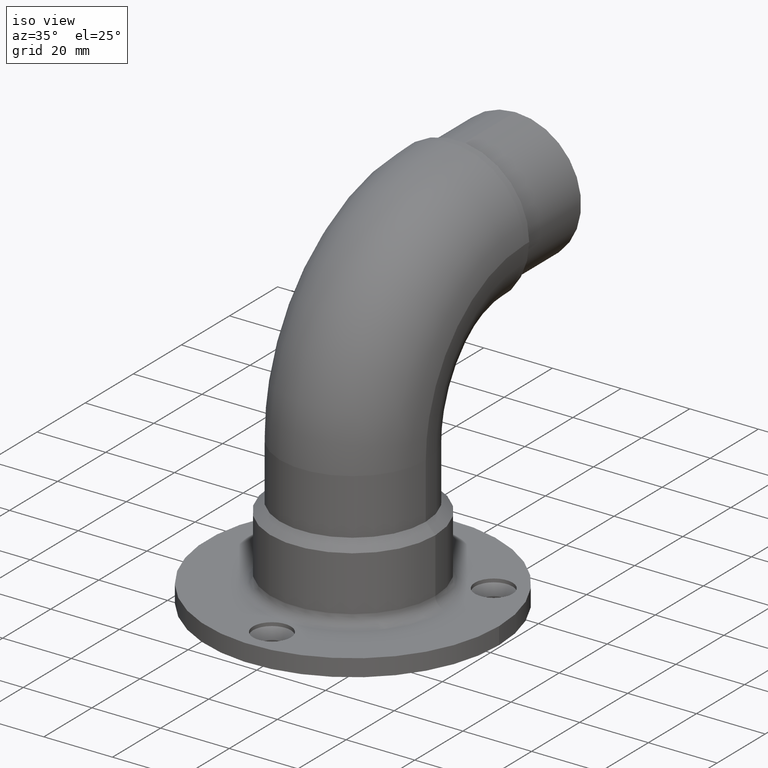
[diagram: clean part render]
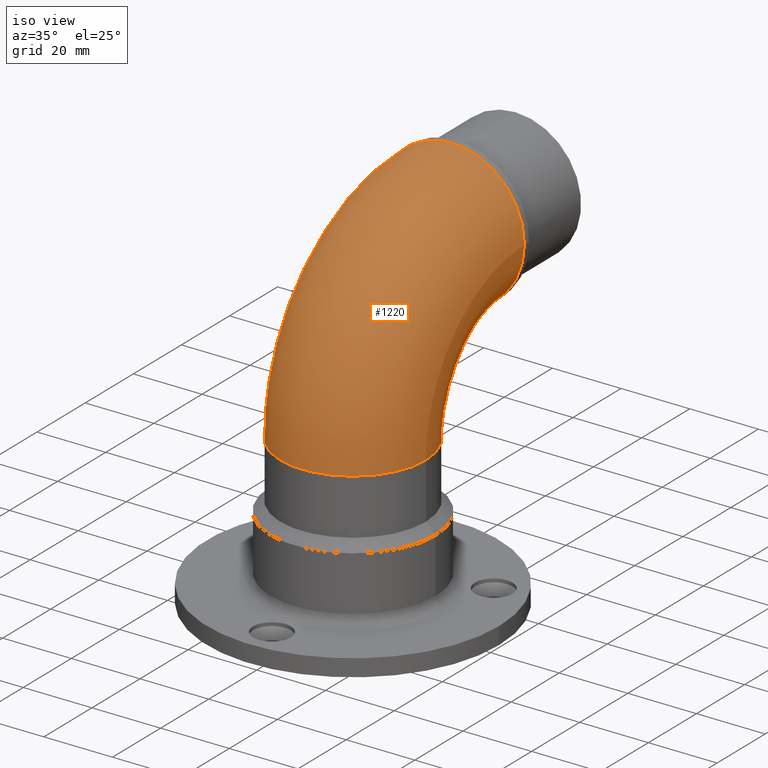
[diagram: same view with one face highlighted and labeled with its STEP entity id]
A machine part, iso view. The second image highlights one B-rep face of the part: STEP entity #1220.
In plain terms, the highlighted toroidal blend (fillet) surface has major radius 41 mm and minor (blend) radius 21.2 mm.
Its self-contained STEP definition (entity closure, byte-faithful):
#583 = CARTESIAN_POINT ( 'NONE',  ( 0.000000000000000000, 41.00000000000000000, 43.00000000000000000 ) ) ;
#1220 = ADVANCED_FACE ( 'NONE', ( #10845, #11609 ), #8757, .T. ) ;
#1857 = EDGE_LOOP ( 'NONE', ( #2972 ) ) ;
#2499 = CIRCLE ( 'NONE', #4548, 21.19999999999999929 ) ;
#2698 = AXIS2_PLACEMENT_3D ( 'NONE', #15232, #15179, #8002 ) ;
#2831 = CARTESIAN_POINT ( 'NONE',  ( 21.19999999999999929, 40.99999999999999289, 83.99999999999998579 ) ) ;
#2886 = EDGE_LOOP ( 'NONE', ( #8190 ) ) ;
#2972 = ORIENTED_EDGE ( 'NONE', *, *, #5749, .T. ) ;
#3085 = DIRECTION ( 'NONE',  ( 0.000000000000000000, 0.000000000000000000, -1.000000000000000000 ) ) ;
#4548 = AXIS2_PLACEMENT_3D ( 'NONE', #10820, #8486, #7081 ) ;
#5244 = DIRECTION ( 'NONE',  ( 1.000000000000000000, 0.000000000000000000, 0.000000000000000000 ) ) ;
#5749 = EDGE_CURVE ( 'NONE', #13922, #13922, #2499, .T. ) ;
#6009 = VERTEX_POINT ( 'NONE', #2831 ) ;
#7081 = DIRECTION ( 'NONE',  ( 1.000000000000000000, 0.000000000000000000, 0.000000000000000000 ) ) ;
#7330 = EDGE_CURVE ( 'NONE', #6009, #6009, #15143, .T. ) ;
#8002 = DIRECTION ( 'NONE',  ( 1.000000000000000000, 0.000000000000000000, 0.000000000000000000 ) ) ;
#8190 = ORIENTED_EDGE ( 'NONE', *, *, #7330, .F. ) ;
#8486 = DIRECTION ( 'NONE',  ( 0.000000000000000000, 0.000000000000000000, 1.000000000000000000 ) ) ;
#8757 = TOROIDAL_SURFACE ( 'NONE', #14351, 40.99999999999998579, 21.19999999999999929 ) ;
#10820 = CARTESIAN_POINT ( 'NONE',  ( 0.000000000000000000, 2.877102350400557656E-15, 43.00000000000000711 ) ) ;
#10845 = FACE_OUTER_BOUND ( 'NONE', #1857, .T. ) ;
#11609 = FACE_OUTER_BOUND ( 'NONE', #2886, .T. ) ;
#12418 = CARTESIAN_POINT ( 'NONE',  ( 21.19999999999999929, 2.877102350400557656E-15, 43.00000000000000711 ) ) ;
#13922 = VERTEX_POINT ( 'NONE', #12418 ) ;
#14351 = AXIS2_PLACEMENT_3D ( 'NONE', #583, #5244, #3085 ) ;
#15143 = CIRCLE ( 'NONE', #2698, 21.19999999999999929 ) ;
#15179 = DIRECTION ( 'NONE',  ( 0.000000000000000000, 1.000000000000000000, 6.938893903907198401E-15 ) ) ;
#15232 = CARTESIAN_POINT ( 'NONE',  ( 0.000000000000000000, 40.99999999999999289, 83.99999999999998579 ) ) ;